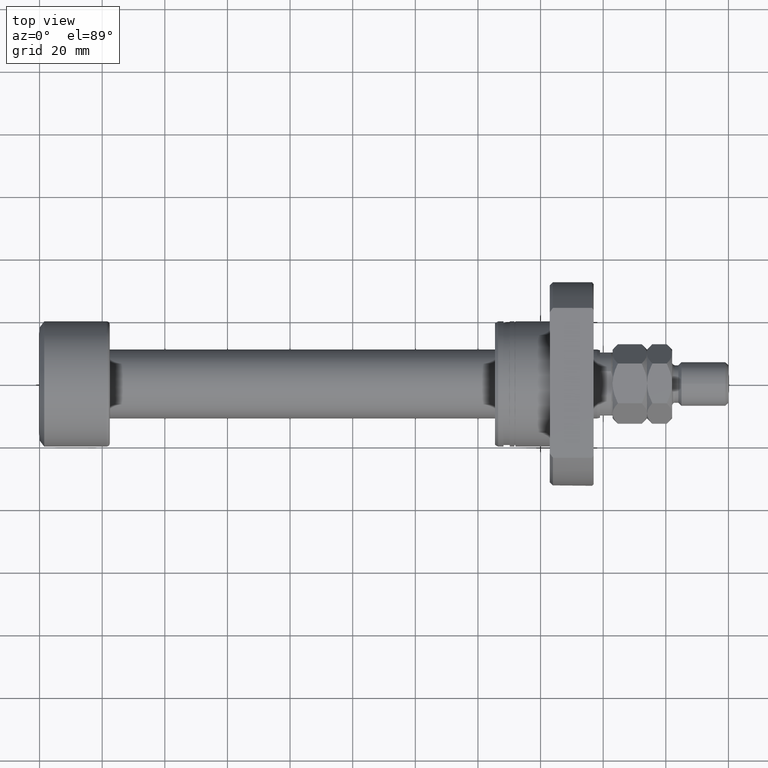
[diagram: clean part render]
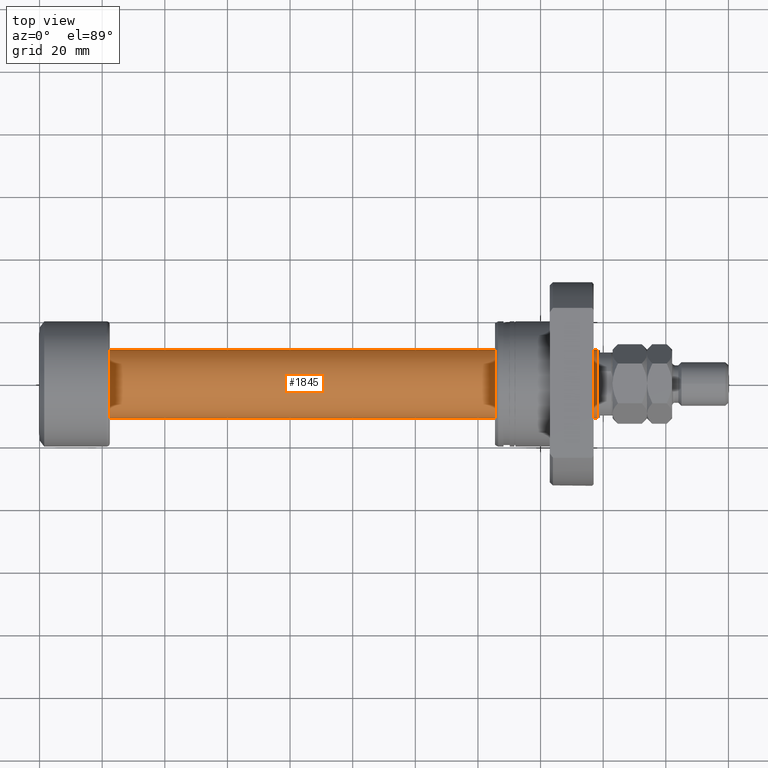
[diagram: same view with one face highlighted and labeled with its STEP entity id]
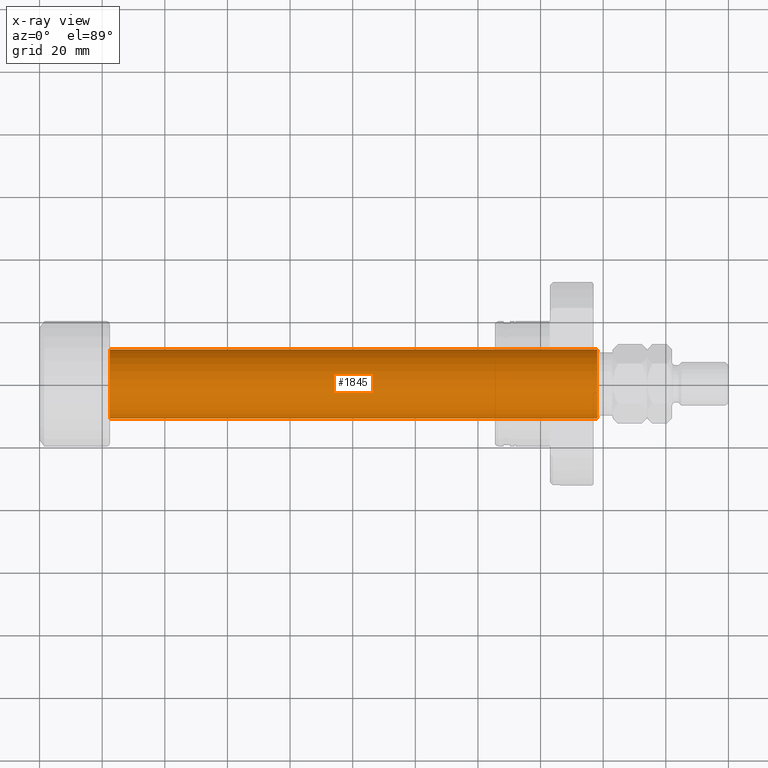
[diagram: x-ray of the same camera — body ghosted, the highlighted face saturated]
A machine part, top view. The second image highlights one B-rep face of the part: STEP entity #1845.
The next image is the same camera in x-ray: the body ghosted, the highlighted face saturated — about 0% of this face is hidden behind the body in this view.
In plain terms, the highlighted cylindrical surface (edge-blend (fillet) strip) has radius 11 mm, axis along (-1, -0, -0).
Its self-contained STEP definition (entity closure, byte-faithful):
#433 = VECTOR ( 'NONE', #677, 1000.000000000000000 ) ;
#482 = CARTESIAN_POINT ( 'NONE',  ( 178.0667575123237611, 1.904499333130400251E-15, 0.000000000000000000 ) ) ;
#677 = DIRECTION ( 'NONE',  ( -1.000000000000000000, -1.069542322069065801E-17, -0.000000000000000000 ) ) ;
#722 = ORIENTED_EDGE ( 'NONE', *, *, #3405, .F. ) ;
#745 = VERTEX_POINT ( 'NONE', #2930 ) ;
#897 = EDGE_CURVE ( 'NONE', #1443, #745, #4509, .T. ) ;
#919 = DIRECTION ( 'NONE',  ( 1.069542322069065801E-17, -1.000000000000000000, 0.000000000000000000 ) ) ;
#1043 = VECTOR ( 'NONE', #2947, 1000.000000000000000 ) ;
#1057 = ORIENTED_EDGE ( 'NONE', *, *, #1779, .F. ) ;
#1414 = AXIS2_PLACEMENT_3D ( 'NONE', #1647, #3492, #919 ) ;
#1443 = VERTEX_POINT ( 'NONE', #3404 ) ;
#1647 = CARTESIAN_POINT ( 'NONE',  ( 0.000000000000000000, 0.000000000000000000, 0.000000000000000000 ) ) ;
#1779 = EDGE_CURVE ( 'NONE', #4096, #3460, #2880, .T. ) ;
#1845 = ADVANCED_FACE ( 'NONE', ( #2016 ), #4224, .T. ) ;
#1938 = CARTESIAN_POINT ( 'NONE',  ( 22.40000000000000924, 2.395774801434708725E-16, 0.000000000000000000 ) ) ;
#2016 = FACE_OUTER_BOUND ( 'NONE', #2908, .T. ) ;
#2228 = LINE ( 'NONE', #4366, #1043 ) ;
#2292 = ORIENTED_EDGE ( 'NONE', *, *, #897, .T. ) ;
#2528 = CARTESIAN_POINT ( 'NONE',  ( 22.40000000000000924, -11.00000000000000000, 0.000000000000000000 ) ) ;
#2763 = DIRECTION ( 'NONE',  ( 0.000000000000000000, -1.000000000000000000, 0.000000000000000000 ) ) ;
#2836 = ORIENTED_EDGE ( 'NONE', *, *, #4709, .T. ) ;
#2880 = CIRCLE ( 'NONE', #3035, 11.00000000000000000 ) ;
#2908 = EDGE_LOOP ( 'NONE', ( #2292, #2836, #1057, #722 ) ) ;
#2930 = CARTESIAN_POINT ( 'NONE',  ( 178.0667575123237611, 11.00000000000019718, 1.347111479062112662E-15 ) ) ;
#2947 = DIRECTION ( 'NONE',  ( -1.000000000000000000, -1.069542322069065801E-17, -0.000000000000000000 ) ) ;
#3035 = AXIS2_PLACEMENT_3D ( 'NONE', #1938, #4499, #4475 ) ;
#3059 = DIRECTION ( 'NONE',  ( -1.000000000000000000, -1.069542322069065801E-17, -0.000000000000000000 ) ) ;
#3404 = CARTESIAN_POINT ( 'NONE',  ( 178.0667575123237611, -11.00000000000019362, 0.000000000000000000 ) ) ;
#3405 = EDGE_CURVE ( 'NONE', #1443, #4096, #2228, .T. ) ;
#3460 = VERTEX_POINT ( 'NONE', #4013 ) ;
#3492 = DIRECTION ( 'NONE',  ( -1.000000000000000000, -1.069542322069065801E-17, -0.000000000000000000 ) ) ;
#3985 = AXIS2_PLACEMENT_3D ( 'NONE', #482, #3059, #2763 ) ;
#4013 = CARTESIAN_POINT ( 'NONE',  ( 22.40000000000000924, 11.00000000000000000, 1.347111479062094321E-15 ) ) ;
#4096 = VERTEX_POINT ( 'NONE', #2528 ) ;
#4224 = CYLINDRICAL_SURFACE ( 'NONE', #1414, 11.00000000000009592 ) ;
#4366 = CARTESIAN_POINT ( 'NONE',  ( 1.176496554275982688E-16, -11.00000000000009592, 0.000000000000000000 ) ) ;
#4406 = LINE ( 'NONE', #4456, #433 ) ;
#4456 = CARTESIAN_POINT ( 'NONE',  ( -1.176496554275982688E-16, 11.00000000000009592, 1.347111479062100435E-15 ) ) ;
#4475 = DIRECTION ( 'NONE',  ( 0.000000000000000000, -1.000000000000000000, 0.000000000000000000 ) ) ;
#4499 = DIRECTION ( 'NONE',  ( -1.000000000000000000, -1.069542322069065801E-17, -0.000000000000000000 ) ) ;
#4509 = CIRCLE ( 'NONE', #3985, 11.00000000000019540 ) ;
#4709 = EDGE_CURVE ( 'NONE', #745, #3460, #4406, .T. ) ;